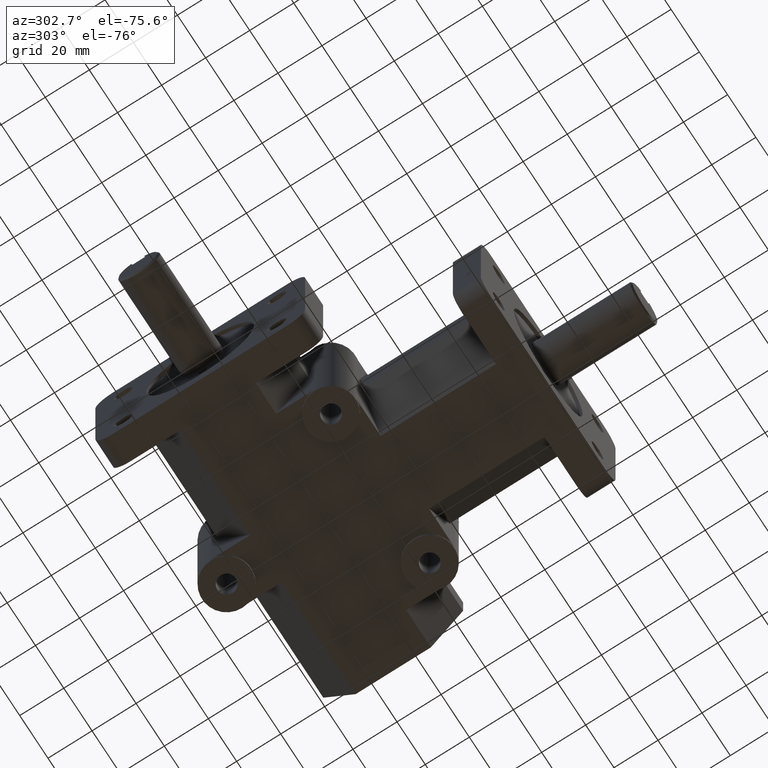
[diagram: clean part render]
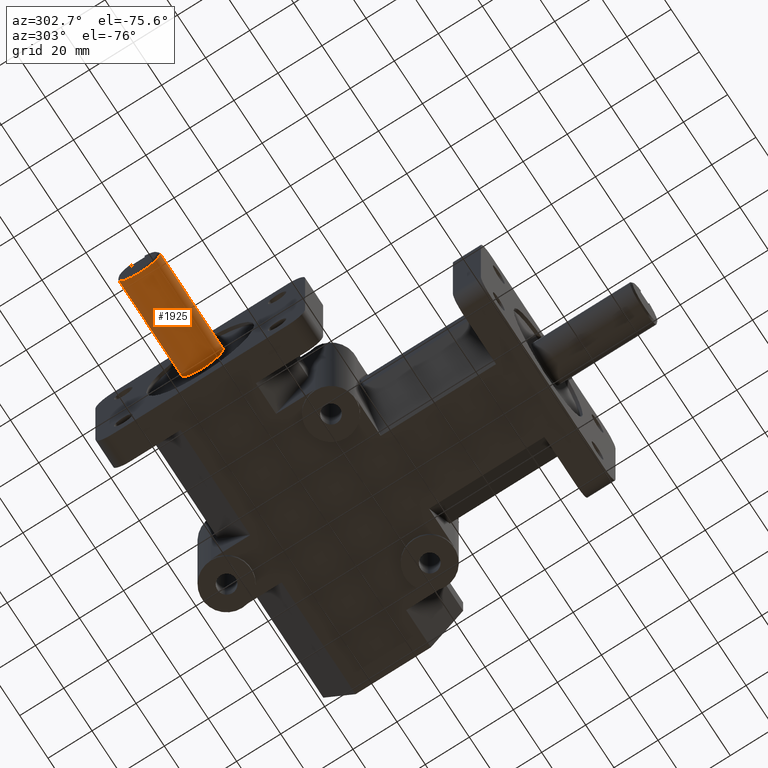
[diagram: same view with one face highlighted and labeled with its STEP entity id]
A machine part, auxiliary view. The second image highlights one B-rep face of the part: STEP entity #1925.
In plain terms, the highlighted cylindrical surface (bore or boss wall) has radius 9.5 mm, axis along (-1, 0, 0).
Its self-contained STEP definition (entity closure, byte-faithful):
#143=FACE_OUTER_BOUND('',#253,.T.);
#253=EDGE_LOOP('',(#1381,#1382,#1383,#1384,#1385,#1386,#1387,#1388));
#398=LINE('',#2876,#589);
#402=LINE('',#2889,#593);
#408=LINE('',#2908,#599);
#589=VECTOR('',#2290,1.);
#593=VECTOR('',#2296,1.);
#599=VECTOR('',#2312,9.5);
#777=CIRCLE('',#2060,9.5);
#778=CIRCLE('',#2062,9.5);
#779=CIRCLE('',#2063,9.5);
#780=CIRCLE('',#2064,9.5);
#869=VERTEX_POINT('',#2874);
#870=VERTEX_POINT('',#2875);
#874=VERTEX_POINT('',#2887);
#875=VERTEX_POINT('',#2888);
#879=VERTEX_POINT('',#2905);
#880=VERTEX_POINT('',#2907);
#1063=EDGE_CURVE('',#869,#870,#398,.T.);
#1068=EDGE_CURVE('',#874,#875,#402,.T.);
#1075=EDGE_CURVE('',#875,#869,#777,.T.);
#1076=EDGE_CURVE('',#879,#870,#778,.T.);
#1077=EDGE_CURVE('',#879,#880,#408,.T.);
#1078=EDGE_CURVE('',#880,#880,#779,.T.);
#1079=EDGE_CURVE('',#874,#879,#780,.T.);
#1381=ORIENTED_EDGE('',*,*,#1063,.T.);
#1382=ORIENTED_EDGE('',*,*,#1076,.F.);
#1383=ORIENTED_EDGE('',*,*,#1077,.T.);
#1384=ORIENTED_EDGE('',*,*,#1078,.F.);
#1385=ORIENTED_EDGE('',*,*,#1077,.F.);
#1386=ORIENTED_EDGE('',*,*,#1079,.F.);
#1387=ORIENTED_EDGE('',*,*,#1068,.T.);
#1388=ORIENTED_EDGE('',*,*,#1075,.T.);
#1880=CYLINDRICAL_SURFACE('',#2061,9.5);
#1925=ADVANCED_FACE('',(#143),#1880,.T.);
#2060=AXIS2_PLACEMENT_3D('',#2903,#2306,#2307);
#2061=AXIS2_PLACEMENT_3D('',#2904,#2308,#2309);
#2062=AXIS2_PLACEMENT_3D('',#2906,#2310,#2311);
#2063=AXIS2_PLACEMENT_3D('',#2909,#2313,#2314);
#2064=AXIS2_PLACEMENT_3D('',#2910,#2315,#2316);
#2290=DIRECTION('',(-1.,0.,0.));
#2296=DIRECTION('',(1.,0.,0.));
#2306=DIRECTION('center_axis',(1.,0.,0.));
#2307=DIRECTION('ref_axis',(0.,-1.,0.));
#2308=DIRECTION('center_axis',(-1.,0.,0.));
#2309=DIRECTION('ref_axis',(0.,-1.,0.));
#2310=DIRECTION('center_axis',(-1.,0.,0.));
#2311=DIRECTION('ref_axis',(0.,1.,0.));
#2312=DIRECTION('',(1.,0.,0.));
#2313=DIRECTION('center_axis',(1.,0.,0.));
#2314=DIRECTION('ref_axis',(0.,-1.,0.));
#2315=DIRECTION('center_axis',(-1.,0.,0.));
#2316=DIRECTION('ref_axis',(0.,1.,0.));
#2874=CARTESIAN_POINT('',(-78.925,108.125,9.01387818865997));
#2875=CARTESIAN_POINT('',(-116.263,108.125,9.01387818865997));
#2876=CARTESIAN_POINT('',(-94.263,108.125,9.01387818865997));
#2887=CARTESIAN_POINT('',(-116.263,114.125,9.01387818865997));
#2888=CARTESIAN_POINT('',(-78.925,114.125,9.01387818865997));
#2889=CARTESIAN_POINT('',(-94.263,114.125,9.01387818865997));
#2903=CARTESIAN_POINT('Origin',(-78.925,111.125,0.));
#2904=CARTESIAN_POINT('Origin',(-94.263,111.125,0.));
#2905=CARTESIAN_POINT('',(-116.263,120.625,-1.16341445918999E-15));
#2906=CARTESIAN_POINT('Origin',(-116.263,111.125,0.));
#2907=CARTESIAN_POINT('',(-71.501,120.625,-1.16341445918999E-15));
#2908=CARTESIAN_POINT('',(-94.263,120.625,-1.16341445918999E-15));
#2909=CARTESIAN_POINT('Origin',(-71.501,111.125,0.));
#2910=CARTESIAN_POINT('Origin',(-116.263,111.125,0.));